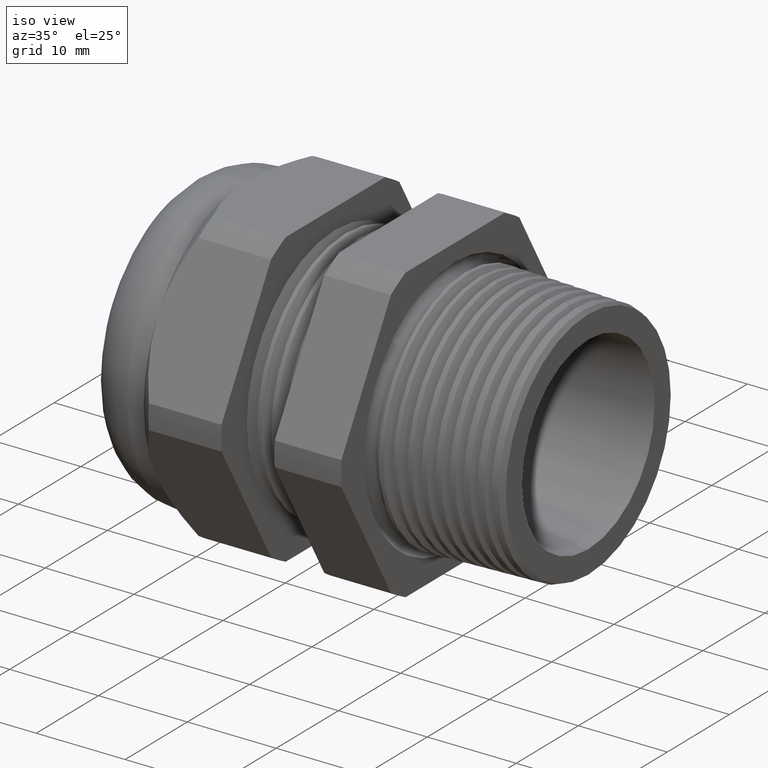
[diagram: clean part render]
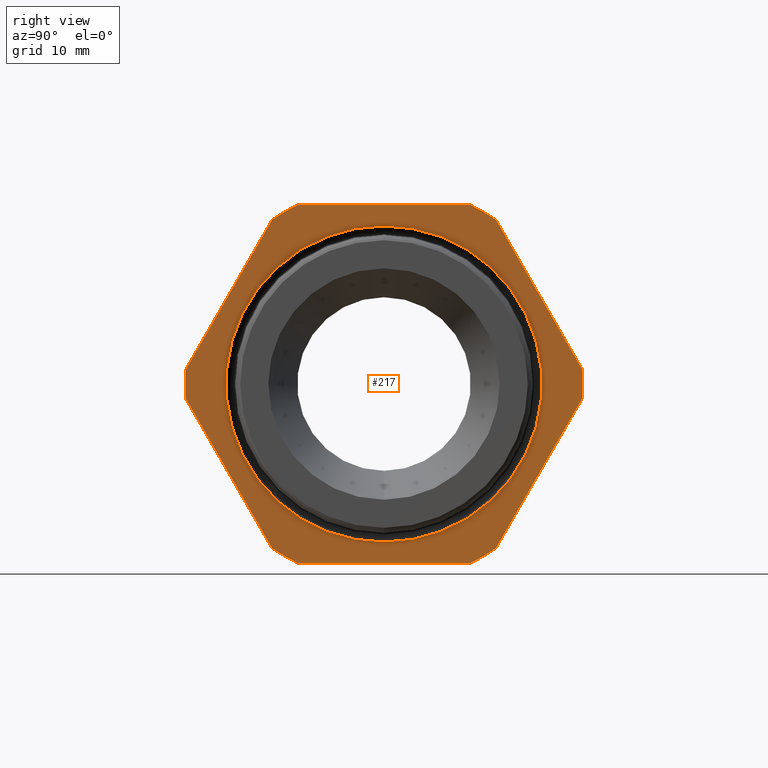
[diagram: tour spotlight — one face highlighted and labeled with its STEP entity id]
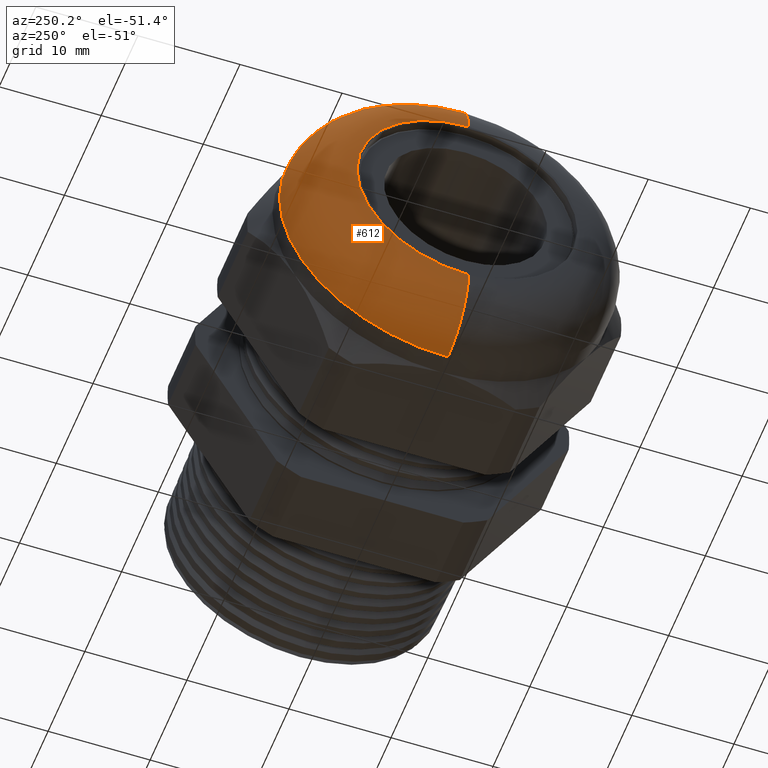
[diagram: tour spotlight — one face highlighted and labeled with its STEP entity id]
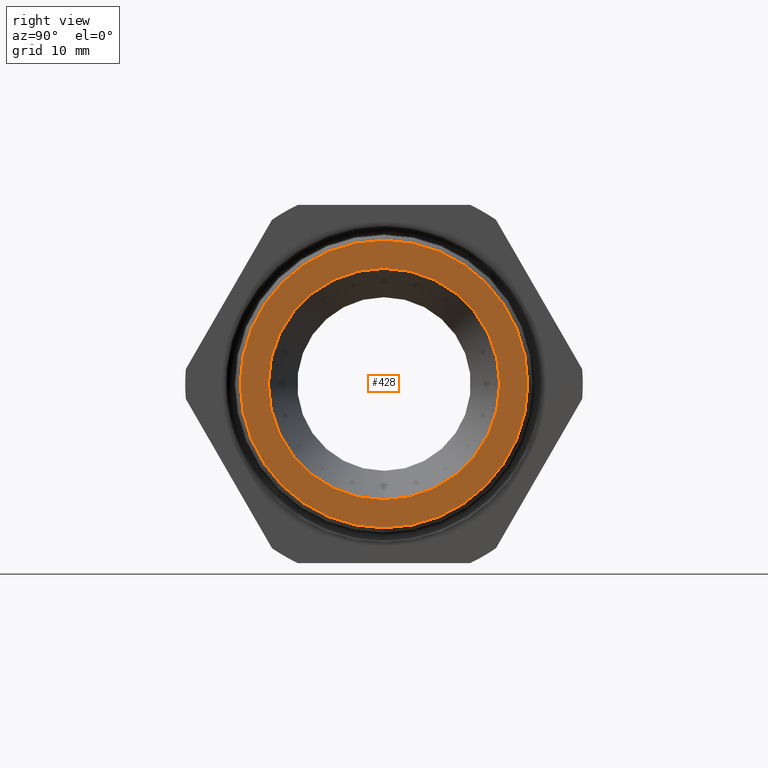
[diagram: tour spotlight — one face highlighted and labeled with its STEP entity id]
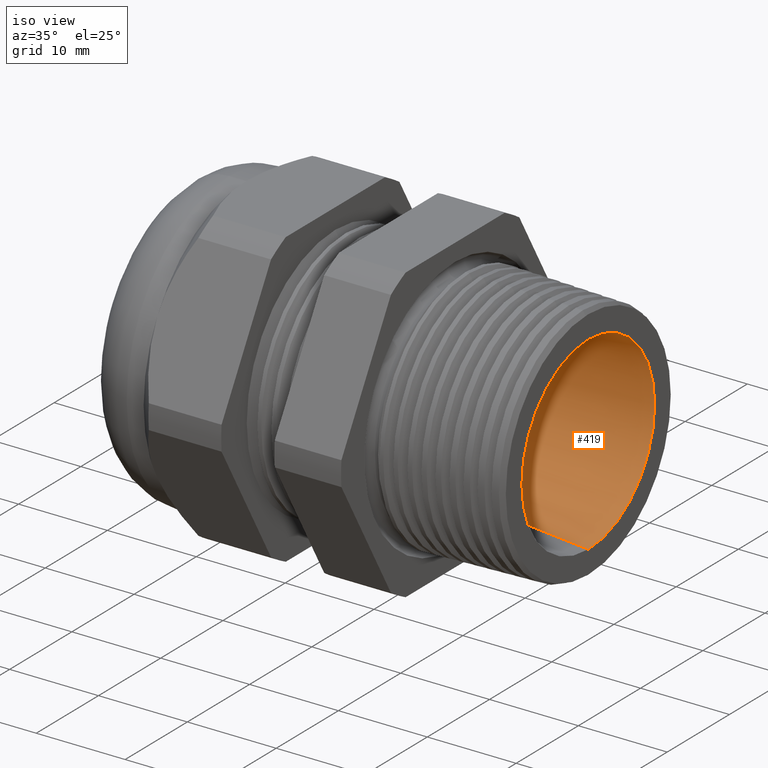
[diagram: tour spotlight — one face highlighted and labeled with its STEP entity id]
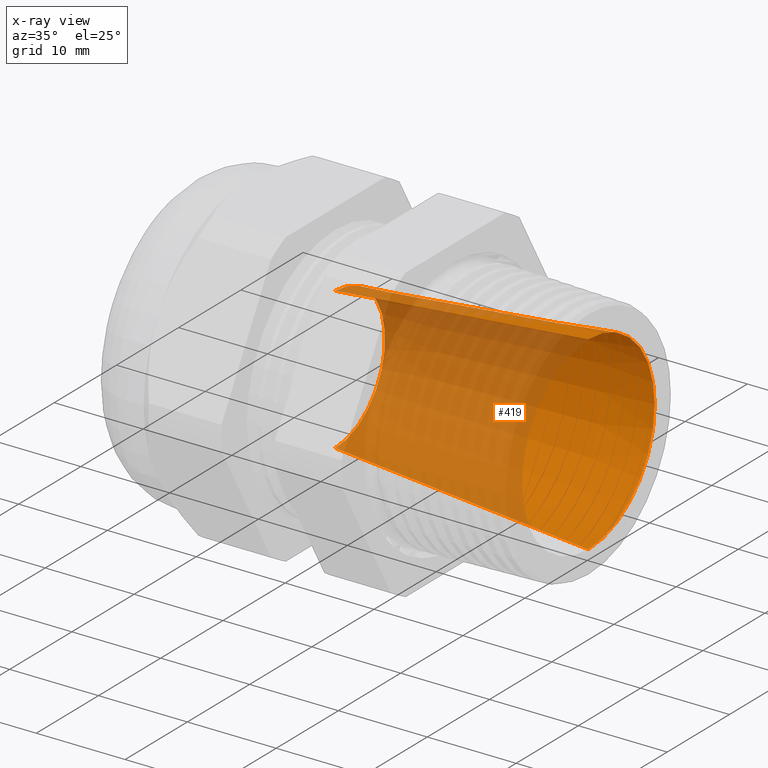
[diagram: x-ray of the same camera — body ghosted, this tour face saturated]
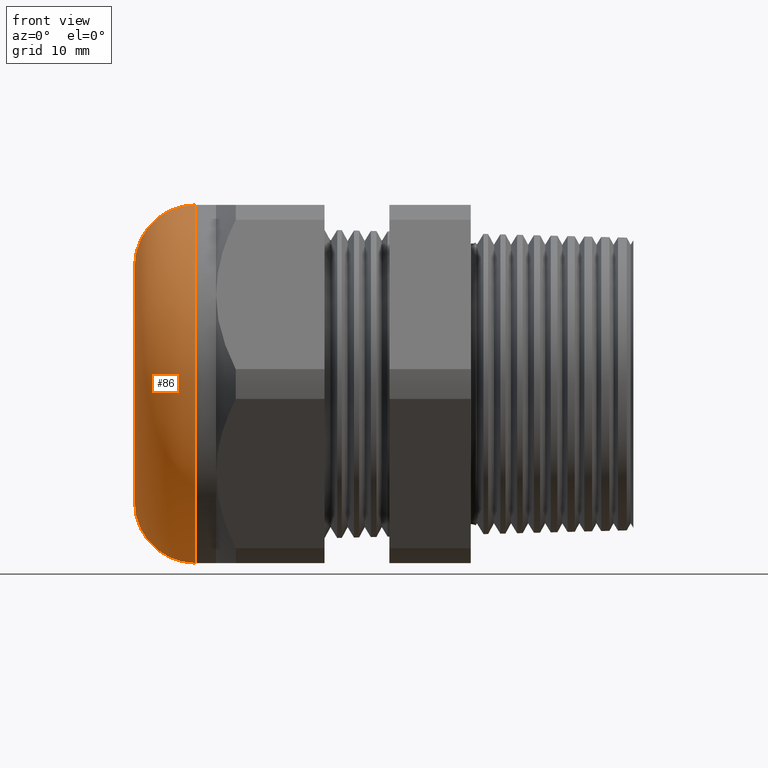
[diagram: tour spotlight — one face highlighted and labeled with its STEP entity id]
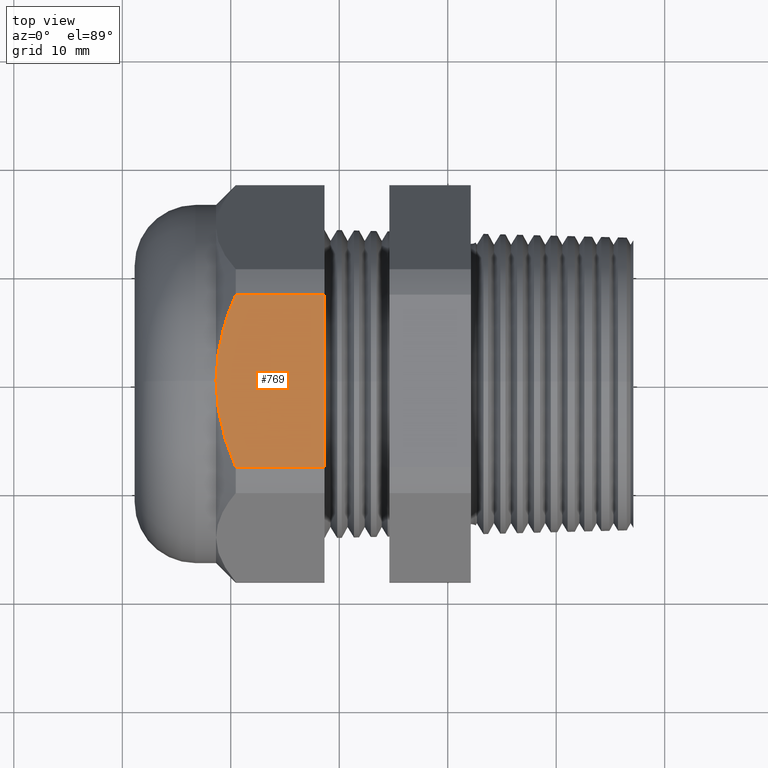
[diagram: tour spotlight — one face highlighted and labeled with its STEP entity id]
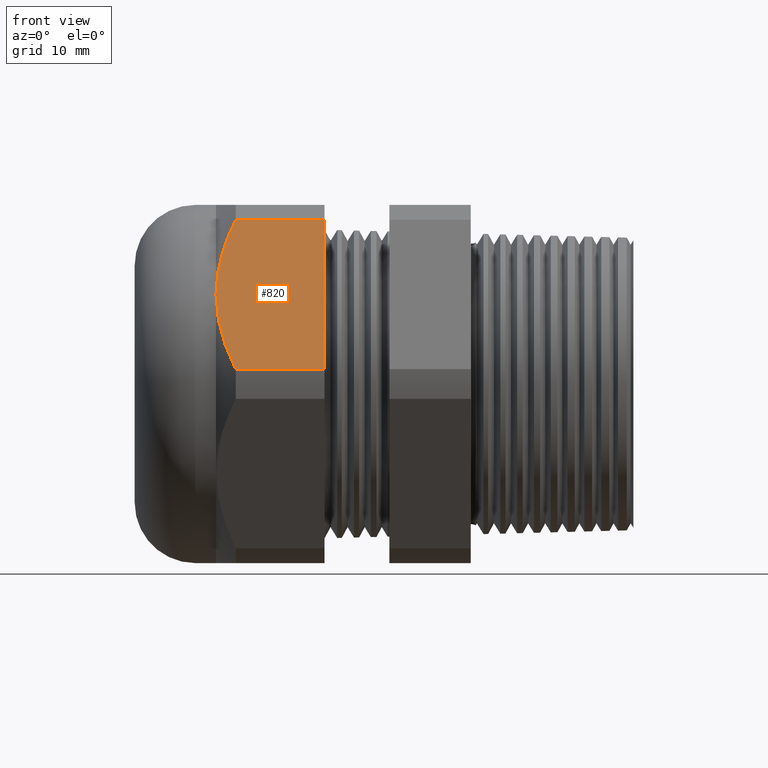
[diagram: tour spotlight — one face highlighted and labeled with its STEP entity id]
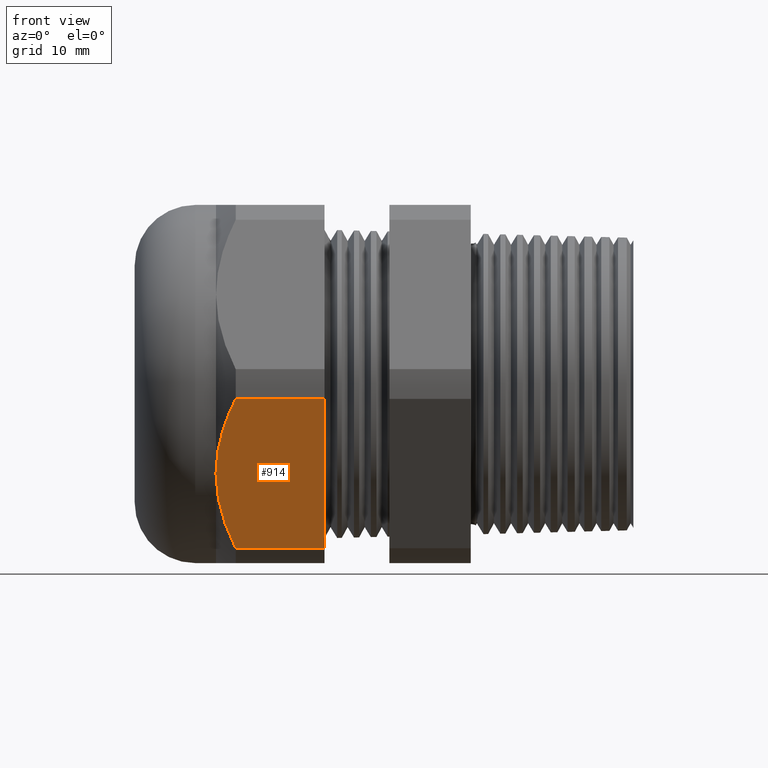
[diagram: tour spotlight — one face highlighted and labeled with its STEP entity id]
A machine part: a face-by-face anatomy tour. The part has 140 B-rep faces; the first image is the clean iso view, then the 8 largest visible faces are spotlighted one at a time (largest first), each with its STEP entity span.

Face 1 — right view, entity #217. In plain terms, the highlighted planar face has unit normal (1, 0, 0).
Definition (entity closure, byte-faithful):
#211 = VERTEX_POINT ( 'NONE', #1310 ) ;
#215 = EDGE_LOOP ( 'NONE', ( #225, #228, #222, #849, #852, #855, #858, #861, #876, #879, #882, #885 ) ) ;
#217 = ADVANCED_FACE ( 'NONE', ( #1365, #1364 ), #1363, .T. ) ;
#219 = VERTEX_POINT ( 'NONE', #1352 ) ;
#222 = ORIENTED_EDGE ( 'NONE', *, *, #847, .T. ) ;
#223 = EDGE_CURVE ( 'NONE', #219, #226, #1347, .T. ) ;
#225 = ORIENTED_EDGE ( 'NONE', *, *, #223, .T. ) ;
#226 = VERTEX_POINT ( 'NONE', #1343 ) ;
#227 = EDGE_CURVE ( 'NONE', #226, #211, #1341, .T. ) ;
#228 = ORIENTED_EDGE ( 'NONE', *, *, #227, .T. ) ;
#538 = VERTEX_POINT ( 'NONE', #1912 ) ;
#541 = EDGE_CURVE ( 'NONE', #538, #569, #1972, .T. ) ;
#569 = VERTEX_POINT ( 'NONE', #1986 ) ;
#803 = ORIENTED_EDGE ( 'NONE', *, *, #541, .T. ) ;
#847 = EDGE_CURVE ( 'NONE', #211, #848, #2535, .T. ) ;
#848 = VERTEX_POINT ( 'NONE', #2531 ) ;
#849 = ORIENTED_EDGE ( 'NONE', *, *, #850, .T. ) ;
#850 = EDGE_CURVE ( 'NONE', #848, #851, #2530, .T. ) ;
#851 = VERTEX_POINT ( 'NONE', #2525 ) ;
#852 = ORIENTED_EDGE ( 'NONE', *, *, #853, .T. ) ;
#853 = EDGE_CURVE ( 'NONE', #851, #854, #2524, .T. ) ;
#854 = VERTEX_POINT ( 'NONE', #2520 ) ;
#855 = ORIENTED_EDGE ( 'NONE', *, *, #856, .T. ) ;
#856 = EDGE_CURVE ( 'NONE', #854, #857, #2519, .T. ) ;
#857 = VERTEX_POINT ( 'NONE', #2514 ) ;
#858 = ORIENTED_EDGE ( 'NONE', *, *, #859, .T. ) ;
#859 = EDGE_CURVE ( 'NONE', #857, #860, #2513, .T. ) ;
#860 = VERTEX_POINT ( 'NONE', #2509 ) ;
#861 = ORIENTED_EDGE ( 'NONE', *, *, #874, .T. ) ;
#862 = ORIENTED_EDGE ( 'NONE', *, *, #863, .T. ) ;
#863 = EDGE_CURVE ( 'NONE', #569, #538, #2507, .T. ) ;
#874 = EDGE_CURVE ( 'NONE', #860, #875, #2550, .T. ) ;
#875 = VERTEX_POINT ( 'NONE', #2541 ) ;
#876 = ORIENTED_EDGE ( 'NONE', *, *, #877, .T. ) ;
#877 = EDGE_CURVE ( 'NONE', #875, #878, #2540, .T. ) ;
#878 = VERTEX_POINT ( 'NONE', #2536 ) ;
#879 = ORIENTED_EDGE ( 'NONE', *, *, #880, .T. ) ;
#880 = EDGE_CURVE ( 'NONE', #878, #881, #2593, .T. ) ;
#881 = VERTEX_POINT ( 'NONE', #2588 ) ;
#882 = ORIENTED_EDGE ( 'NONE', *, *, #883, .T. ) ;
#883 = EDGE_CURVE ( 'NONE', #881, #884, #2587, .T. ) ;
#884 = VERTEX_POINT ( 'NONE', #2583 ) ;
#885 = ORIENTED_EDGE ( 'NONE', *, *, #886, .T. ) ;
#886 = EDGE_CURVE ( 'NONE', #884, #219, #2582, .T. ) ;
#887 = EDGE_LOOP ( 'NONE', ( #803, #862 ) ) ;
#1310 = CARTESIAN_POINT ( 'NONE',  ( -0.3100000000000000000, 0.7194909755756818700, 0.05380507471562141800 ) ) ;
#1337 = DIRECTION ( 'NONE',  ( 0.0000000000000000000, 0.0000000000000000000, -1.000000000000000000 ) ) ;
#1338 = DIRECTION ( 'NONE',  ( 1.000000000000000000, 0.0000000000000000000, 0.0000000000000000000 ) ) ;
#1339 = CARTESIAN_POINT ( 'NONE',  ( -0.3100000000000000000, 0.0000000000000000000, 0.0000000000000000000 ) ) ;
#1340 = AXIS2_PLACEMENT_3D ( 'NONE', #1339, #1338, #1337 ) ;
#1341 = CIRCLE ( 'NONE', #1340, 0.7214999999999999200 ) ;
#1343 = CARTESIAN_POINT ( 'NONE',  ( -0.3100000000000000000, 0.7194909755756817600, -0.05380507471562087600 ) ) ;
#1344 = DIRECTION ( 'NONE',  ( 0.0000000000000000000, 0.4999999999999995600, 0.8660254037844388200 ) ) ;
#1345 = VECTOR ( 'NONE', #1344, 39.37007874015748900 ) ;
#1346 = CARTESIAN_POINT ( 'NONE',  ( -0.3100000000000000000, 0.8879165124598849000, 0.2379165124598851000 ) ) ;
#1347 = LINE ( 'NONE', #1346, #1345 ) ;
#1352 = CARTESIAN_POINT ( 'NONE',  ( -0.3100000000000000000, 0.4063420493440886800, -0.5961949252843790100 ) ) ;
#1359 = DIRECTION ( 'NONE',  ( 0.0000000000000000000, 0.0000000000000000000, -1.000000000000000000 ) ) ;
#1360 = DIRECTION ( 'NONE',  ( 1.000000000000000000, 0.0000000000000000000, 0.0000000000000000000 ) ) ;
#1361 = CARTESIAN_POINT ( 'NONE',  ( -0.3100000000000000000, 1.300000000000000000, 0.0000000000000000000 ) ) ;
#1362 = AXIS2_PLACEMENT_3D ( 'NONE', #1361, #1360, #1359 ) ;
#1363 = PLANE ( 'NONE',  #1362 ) ;
#1364 = FACE_BOUND ( 'NONE', #887, .T. ) ;
#1365 = FACE_OUTER_BOUND ( 'NONE', #215, .T. ) ;
#1912 = CARTESIAN_POINT ( 'NONE',  ( -0.3100000000000000000, 0.0000000000000000000, -0.5735792688232509400 ) ) ;
#1968 = DIRECTION ( 'NONE',  ( 0.0000000000000000000, 0.0000000000000000000, -1.000000000000000000 ) ) ;
#1969 = DIRECTION ( 'NONE',  ( -1.000000000000000000, 0.0000000000000000000, 0.0000000000000000000 ) ) ;
#1970 = CARTESIAN_POINT ( 'NONE',  ( -0.3100000000000000000, 0.0000000000000000000, 0.0000000000000000000 ) ) ;
#1971 = AXIS2_PLACEMENT_3D ( 'NONE', #1970, #1969, #1968 ) ;
#1972 = CIRCLE ( 'NONE', #1971, 0.5735792688232509400 ) ;
#1986 = CARTESIAN_POINT ( 'NONE',  ( -0.3100000000000000000, 7.024320156216735800E-017, 0.5735792688232509400 ) ) ;
#2505 = CARTESIAN_POINT ( 'NONE',  ( -0.3100000000000000000, 0.0000000000000000000, 0.0000000000000000000 ) ) ;
#2506 = AXIS2_PLACEMENT_3D ( 'NONE', #2505, #2564, #2563 ) ;
#2507 = CIRCLE ( 'NONE', #2506, 0.5735792688232509400 ) ;
#2509 = CARTESIAN_POINT ( 'NONE',  ( -0.3100000000000000000, -0.7194909755756820900, 0.05380507471562026600 ) ) ;
#2510 = DIRECTION ( 'NONE',  ( 0.0000000000000000000, -0.4999999999999996100, -0.8660254037844388200 ) ) ;
#2511 = VECTOR ( 'NONE', #2510, 39.37007874015748100 ) ;
#2512 = CARTESIAN_POINT ( 'NONE',  ( -0.3100000000000000000, -0.2379165124598855400, 0.8879165124598845700 ) ) ;
#2513 = LINE ( 'NONE', #2512, #2511 ) ;
#2514 = CARTESIAN_POINT ( 'NONE',  ( -0.3100000000000000000, -0.4063420493440885700, 0.5961949252843791200 ) ) ;
#2515 = DIRECTION ( 'NONE',  ( 0.0000000000000000000, 0.0000000000000000000, -1.000000000000000000 ) ) ;
#2516 = DIRECTION ( 'NONE',  ( 1.000000000000000000, 0.0000000000000000000, 0.0000000000000000000 ) ) ;
#2517 = CARTESIAN_POINT ( 'NONE',  ( -0.3100000000000000000, 0.0000000000000000000, 0.0000000000000000000 ) ) ;
#2518 = AXIS2_PLACEMENT_3D ( 'NONE', #2517, #2516, #2515 ) ;
#2519 = CIRCLE ( 'NONE', #2518, 0.7215000000000000300 ) ;
#2520 = CARTESIAN_POINT ( 'NONE',  ( -0.3100000000000000000, -0.3131489262315937400, 0.6500000000000000200 ) ) ;
#2521 = DIRECTION ( 'NONE',  ( 0.0000000000000000000, -1.000000000000000000, 0.0000000000000000000 ) ) ;
#2522 = VECTOR ( 'NONE', #2521, 39.37007874015748100 ) ;
#2523 = CARTESIAN_POINT ( 'NONE',  ( -0.3100000000000000000, 1.300000000000000000, 0.6499999999999999100 ) ) ;
#2524 = LINE ( 'NONE', #2523, #2522 ) ;
#2525 = CARTESIAN_POINT ( 'NONE',  ( -0.3100000000000000000, 0.3131489262315937900, 0.6499999999999999100 ) ) ;
#2526 = DIRECTION ( 'NONE',  ( 0.0000000000000000000, 0.0000000000000000000, -1.000000000000000000 ) ) ;
#2527 = DIRECTION ( 'NONE',  ( 1.000000000000000000, 0.0000000000000000000, 0.0000000000000000000 ) ) ;
#2528 = CARTESIAN_POINT ( 'NONE',  ( -0.3100000000000000000, 0.0000000000000000000, 0.0000000000000000000 ) ) ;
#2529 = AXIS2_PLACEMENT_3D ( 'NONE', #2528, #2527, #2526 ) ;
#2530 = CIRCLE ( 'NONE', #2529, 0.7215000000000000300 ) ;
#2531 = CARTESIAN_POINT ( 'NONE',  ( -0.3100000000000000000, 0.4063420493440889100, 0.5961949252843789000 ) ) ;
#2532 = DIRECTION ( 'NONE',  ( 0.0000000000000000000, -0.5000000000000000000, 0.8660254037844386000 ) ) ;
#2533 = VECTOR ( 'NONE', #2532, 39.37007874015748100 ) ;
#2534 = CARTESIAN_POINT ( 'NONE',  ( -0.3100000000000000000, 0.8879165124598854500, -0.2379165124598849900 ) ) ;
#2535 = LINE ( 'NONE', #2534, #2533 ) ;
#2536 = CARTESIAN_POINT ( 'NONE',  ( -0.3100000000000000000, -0.4063420493440883500, -0.5961949252843792300 ) ) ;
#2537 = DIRECTION ( 'NONE',  ( 0.0000000000000000000, 0.5000000000000001100, -0.8660254037844384900 ) ) ;
#2538 = VECTOR ( 'NONE', #2537, 39.37007874015748900 ) ;
#2539 = CARTESIAN_POINT ( 'NONE',  ( -0.3100000000000000000, -0.2379165124598852700, -0.8879165124598856800 ) ) ;
#2540 = LINE ( 'NONE', #2539, #2538 ) ;
#2541 = CARTESIAN_POINT ( 'NONE',  ( -0.3100000000000000000, -0.7194909755756819800, -0.05380507471562111900 ) ) ;
#2542 = DIRECTION ( 'NONE',  ( 0.0000000000000000000, 0.0000000000000000000, -1.000000000000000000 ) ) ;
#2543 = DIRECTION ( 'NONE',  ( 1.000000000000000000, 0.0000000000000000000, 0.0000000000000000000 ) ) ;
#2544 = CARTESIAN_POINT ( 'NONE',  ( -0.3100000000000000000, 0.0000000000000000000, 0.0000000000000000000 ) ) ;
#2545 = AXIS2_PLACEMENT_3D ( 'NONE', #2544, #2543, #2542 ) ;
#2550 = CIRCLE ( 'NONE', #2545, 0.7215000000000002500 ) ;
#2563 = DIRECTION ( 'NONE',  ( 0.0000000000000000000, 0.0000000000000000000, -1.000000000000000000 ) ) ;
#2564 = DIRECTION ( 'NONE',  ( -1.000000000000000000, 0.0000000000000000000, 0.0000000000000000000 ) ) ;
#2578 = DIRECTION ( 'NONE',  ( 0.0000000000000000000, 0.0000000000000000000, -1.000000000000000000 ) ) ;
#2579 = DIRECTION ( 'NONE',  ( 1.000000000000000000, 0.0000000000000000000, 0.0000000000000000000 ) ) ;
#2580 = CARTESIAN_POINT ( 'NONE',  ( -0.3100000000000000000, 0.0000000000000000000, 0.0000000000000000000 ) ) ;
#2581 = AXIS2_PLACEMENT_3D ( 'NONE', #2580, #2579, #2578 ) ;
#2582 = CIRCLE ( 'NONE', #2581, 0.7215000000000000300 ) ;
#2583 = CARTESIAN_POINT ( 'NONE',  ( -0.3100000000000000000, 0.3131489262315934100, -0.6500000000000001300 ) ) ;
#2584 = DIRECTION ( 'NONE',  ( 0.0000000000000000000, 1.000000000000000000, 0.0000000000000000000 ) ) ;
#2585 = VECTOR ( 'NONE', #2584, 39.37007874015748100 ) ;
#2586 = CARTESIAN_POINT ( 'NONE',  ( -0.3100000000000000000, 1.300000000000000000, -0.6500000000000001300 ) ) ;
#2587 = LINE ( 'NONE', #2586, #2585 ) ;
#2588 = CARTESIAN_POINT ( 'NONE',  ( -0.3100000000000000000, -0.3131489262315934100, -0.6500000000000001300 ) ) ;
#2589 = DIRECTION ( 'NONE',  ( 0.0000000000000000000, 0.0000000000000000000, -1.000000000000000000 ) ) ;
#2590 = DIRECTION ( 'NONE',  ( 1.000000000000000000, 0.0000000000000000000, 0.0000000000000000000 ) ) ;
#2591 = CARTESIAN_POINT ( 'NONE',  ( -0.3100000000000000000, 0.0000000000000000000, 0.0000000000000000000 ) ) ;
#2592 = AXIS2_PLACEMENT_3D ( 'NONE', #2591, #2590, #2589 ) ;
#2593 = CIRCLE ( 'NONE', #2592, 0.7215000000000000300 ) ;

Face 2 — auxiliary view, entity #612. In plain terms, the highlighted toroidal blend (fillet) surface has major radius 10.922 mm and minor (blend) radius 5.588 mm.
Definition (entity closure, byte-faithful):
#535 = EDGE_CURVE ( 'NONE', #607, #588, #1921, .T. ) ;
#536 = ORIENTED_EDGE ( 'NONE', *, *, #535, .F. ) ;
#537 = EDGE_CURVE ( 'NONE', #586, #588, #1916, .T. ) ;
#540 = ORIENTED_EDGE ( 'NONE', *, *, #537, .T. ) ;
#585 = EDGE_CURVE ( 'NONE', #586, #587, #2024, .T. ) ;
#586 = VERTEX_POINT ( 'NONE', #2019 ) ;
#587 = VERTEX_POINT ( 'NONE', #2018 ) ;
#588 = VERTEX_POINT ( 'NONE', #2017 ) ;
#607 = VERTEX_POINT ( 'NONE', #2043 ) ;
#608 = ORIENTED_EDGE ( 'NONE', *, *, #609, .F. ) ;
#609 = EDGE_CURVE ( 'NONE', #587, #607, #2042, .T. ) ;
#612 = ADVANCED_FACE ( 'NONE', ( #2091 ), #2090, .T. ) ;
#613 = EDGE_LOOP ( 'NONE', ( #614, #540, #536, #608 ) ) ;
#614 = ORIENTED_EDGE ( 'NONE', *, *, #585, .F. ) ;
#1913 = DIRECTION ( 'NONE',  ( 0.0000000000000000000, -1.224646799147353200E-016, 1.000000000000000000 ) ) ;
#1914 = DIRECTION ( 'NONE',  ( 0.0000000000000000000, 1.000000000000000000, 1.224646799147353200E-016 ) ) ;
#1915 = AXIS2_PLACEMENT_3D ( 'NONE', #1922, #1914, #1913 ) ;
#1916 = CIRCLE ( 'NONE', #1915, 0.2200000000000000000 ) ;
#1917 = DIRECTION ( 'NONE',  ( 0.0000000000000000000, 0.0000000000000000000, 1.000000000000000000 ) ) ;
#1918 = DIRECTION ( 'NONE',  ( -1.000000000000000000, 0.0000000000000000000, 0.0000000000000000000 ) ) ;
#1919 = CARTESIAN_POINT ( 'NONE',  ( -1.530000000000000000, 0.0000000000000000000, 0.0000000000000000000 ) ) ;
#1920 = AXIS2_PLACEMENT_3D ( 'NONE', #1919, #1918, #1917 ) ;
#1921 = CIRCLE ( 'NONE', #1920, 0.4300000000000002200 ) ;
#1922 = CARTESIAN_POINT ( 'NONE',  ( -1.310000000000000100, 5.265981236333621300E-017, -0.4300000000000002200 ) ) ;
#2017 = CARTESIAN_POINT ( 'NONE',  ( -1.530000000000000000, 6.613092715395709900E-017, -0.4300000000000002200 ) ) ;
#2018 = CARTESIAN_POINT ( 'NONE',  ( -1.310000000000000100, 7.960204194457797900E-017, 0.6500000000000001300 ) ) ;
#2019 = CARTESIAN_POINT ( 'NONE',  ( -1.310000000000000100, 0.0000000000000000000, -0.6500000000000001300 ) ) ;
#2020 = DIRECTION ( 'NONE',  ( 0.0000000000000000000, 0.0000000000000000000, 1.000000000000000000 ) ) ;
#2021 = DIRECTION ( 'NONE',  ( 1.000000000000000000, 0.0000000000000000000, 0.0000000000000000000 ) ) ;
#2022 = CARTESIAN_POINT ( 'NONE',  ( -1.310000000000000100, 0.0000000000000000000, 0.0000000000000000000 ) ) ;
#2023 = AXIS2_PLACEMENT_3D ( 'NONE', #2022, #2021, #2020 ) ;
#2024 = CIRCLE ( 'NONE', #2023, 0.6500000000000001300 ) ;
#2038 = DIRECTION ( 'NONE',  ( 0.0000000000000000000, 0.0000000000000000000, -1.000000000000000000 ) ) ;
#2039 = DIRECTION ( 'NONE',  ( 0.0000000000000000000, -1.000000000000000000, 0.0000000000000000000 ) ) ;
#2040 = CARTESIAN_POINT ( 'NONE',  ( -1.310000000000000100, 0.0000000000000000000, 0.4300000000000002200 ) ) ;
#2041 = AXIS2_PLACEMENT_3D ( 'NONE', #2040, #2039, #2038 ) ;
#2042 = CIRCLE ( 'NONE', #2041, 0.2200000000000000000 ) ;
#2043 = CARTESIAN_POINT ( 'NONE',  ( -1.530000000000000000, 0.0000000000000000000, 0.4300000000000002200 ) ) ;
#2085 = DIRECTION ( 'NONE',  ( 0.0000000000000000000, 0.0000000000000000000, 1.000000000000000000 ) ) ;
#2086 = DIRECTION ( 'NONE',  ( -1.000000000000000000, 0.0000000000000000000, 0.0000000000000000000 ) ) ;
#2087 = CARTESIAN_POINT ( 'NONE',  ( -1.310000000000000100, 0.0000000000000000000, 0.0000000000000000000 ) ) ;
#2088 = AXIS2_PLACEMENT_3D ( 'NONE', #2087, #2086, #2085 ) ;
#2090 = TOROIDAL_SURFACE ( 'NONE', #2088, 0.4300000000000002200, 0.2200000000000000000 ) ;
#2091 = FACE_OUTER_BOUND ( 'NONE', #613, .T. ) ;

Face 3 — right view, entity #428. In plain terms, the highlighted planar face has unit normal (1, 0, 0).
Definition (entity closure, byte-faithful):
#346 = VERTEX_POINT ( 'NONE', #1533 ) ;
#358 = VERTEX_POINT ( 'NONE', #1574 ) ;
#367 = EDGE_CURVE ( 'NONE', #358, #346, #1613, .T. ) ;
#418 = ORIENTED_EDGE ( 'NONE', *, *, #3694, .F. ) ;
#420 = EDGE_LOOP ( 'NONE', ( #421, #418 ) ) ;
#421 = ORIENTED_EDGE ( 'NONE', *, *, #422, .F. ) ;
#422 = EDGE_CURVE ( 'NONE', #3692, #3686, #1694, .T. ) ;
#423 = ORIENTED_EDGE ( 'NONE', *, *, #367, .F. ) ;
#425 = EDGE_LOOP ( 'NONE', ( #427, #423 ) ) ;
#426 = EDGE_CURVE ( 'NONE', #346, #358, #1748, .T. ) ;
#427 = ORIENTED_EDGE ( 'NONE', *, *, #426, .F. ) ;
#428 = ADVANCED_FACE ( 'NONE', ( #1743, #1742 ), #1741, .T. ) ;
#1533 = CARTESIAN_POINT ( 'NONE',  ( 0.2799999999999999700, 0.0000000000000000000, -0.5217586768525732700 ) ) ;
#1574 = CARTESIAN_POINT ( 'NONE',  ( 0.2799999999999999700, 6.389700935348620700E-017, 0.5217586768525732700 ) ) ;
#1609 = DIRECTION ( 'NONE',  ( 0.0000000000000000000, 0.0000000000000000000, -1.000000000000000000 ) ) ;
#1610 = DIRECTION ( 'NONE',  ( -1.000000000000000000, 0.0000000000000000000, 0.0000000000000000000 ) ) ;
#1611 = CARTESIAN_POINT ( 'NONE',  ( 0.2799999999999999700, 0.0000000000000000000, 0.0000000000000000000 ) ) ;
#1612 = AXIS2_PLACEMENT_3D ( 'NONE', #1611, #1610, #1609 ) ;
#1613 = CIRCLE ( 'NONE', #1612, 0.5217586768525732700 ) ;
#1694 = CIRCLE ( 'NONE', #1752, 0.4200000000000000400 ) ;
#1737 = DIRECTION ( 'NONE',  ( 0.0000000000000000000, 0.0000000000000000000, -1.000000000000000000 ) ) ;
#1738 = DIRECTION ( 'NONE',  ( 1.000000000000000000, 0.0000000000000000000, 0.0000000000000000000 ) ) ;
#1739 = CARTESIAN_POINT ( 'NONE',  ( 0.2799999999999999700, 0.4200000000000000400, 0.0000000000000000000 ) ) ;
#1740 = AXIS2_PLACEMENT_3D ( 'NONE', #1739, #1738, #1737 ) ;
#1741 = PLANE ( 'NONE',  #1740 ) ;
#1742 = FACE_BOUND ( 'NONE', #420, .T. ) ;
#1743 = FACE_OUTER_BOUND ( 'NONE', #425, .T. ) ;
#1744 = DIRECTION ( 'NONE',  ( 0.0000000000000000000, 0.0000000000000000000, -1.000000000000000000 ) ) ;
#1745 = DIRECTION ( 'NONE',  ( -1.000000000000000000, 0.0000000000000000000, 0.0000000000000000000 ) ) ;
#1746 = CARTESIAN_POINT ( 'NONE',  ( 0.2799999999999999700, 0.0000000000000000000, 0.0000000000000000000 ) ) ;
#1747 = AXIS2_PLACEMENT_3D ( 'NONE', #1746, #1745, #1744 ) ;
#1748 = CIRCLE ( 'NONE', #1747, 0.5217586768525732700 ) ;
#1749 = DIRECTION ( 'NONE',  ( 0.0000000000000000000, 0.0000000000000000000, -1.000000000000000000 ) ) ;
#1750 = DIRECTION ( 'NONE',  ( 1.000000000000000000, 0.0000000000000000000, 0.0000000000000000000 ) ) ;
#1751 = CARTESIAN_POINT ( 'NONE',  ( 0.2800000000000000300, 0.0000000000000000000, 0.0000000000000000000 ) ) ;
#1752 = AXIS2_PLACEMENT_3D ( 'NONE', #1751, #1750, #1749 ) ;
#3139 = DIRECTION ( 'NONE',  ( 0.0000000000000000000, 0.0000000000000000000, -1.000000000000000000 ) ) ;
#3140 = DIRECTION ( 'NONE',  ( 1.000000000000000000, 0.0000000000000000000, 0.0000000000000000000 ) ) ;
#3141 = CARTESIAN_POINT ( 'NONE',  ( 0.2800000000000000300, 0.0000000000000000000, 0.0000000000000000000 ) ) ;
#3142 = AXIS2_PLACEMENT_3D ( 'NONE', #3141, #3140, #3139 ) ;
#3143 = CIRCLE ( 'NONE', #3142, 0.4200000000000000400 ) ;
#3144 = CARTESIAN_POINT ( 'NONE',  ( 0.2800000000000000300, 0.0000000000000000000, -0.4200000000000000400 ) ) ;
#3149 = CARTESIAN_POINT ( 'NONE',  ( 0.2800000000000000300, 5.143516556418884400E-017, 0.4200000000000000400 ) ) ;
#3686 = VERTEX_POINT ( 'NONE', #3149 ) ;
#3692 = VERTEX_POINT ( 'NONE', #3144 ) ;
#3694 = EDGE_CURVE ( 'NONE', #3686, #3692, #3143, .T. ) ;

Face 4 — iso view, entity #419. An x-ray twin of the same camera follows (body ghosted, this face saturated) — the face is partly hidden behind the body. In plain terms, the highlighted conical surface has half-angle 5.351 deg.
Definition (entity closure, byte-faithful):
#417 = EDGE_LOOP ( 'NONE', ( #439, #441, #440, #442 ) ) ;
#419 = ADVANCED_FACE ( 'NONE', ( #1696 ), #1695, .F. ) ;
#422 = EDGE_CURVE ( 'NONE', #3692, #3686, #1694, .T. ) ;
#438 = EDGE_CURVE ( 'NONE', #3680, #3822, #1783, .T. ) ;
#439 = ORIENTED_EDGE ( 'NONE', *, *, #3685, .F. ) ;
#440 = ORIENTED_EDGE ( 'NONE', *, *, #3690, .T. ) ;
#441 = ORIENTED_EDGE ( 'NONE', *, *, #438, .F. ) ;
#442 = ORIENTED_EDGE ( 'NONE', *, *, #422, .T. ) ;
#1691 = DIRECTION ( 'NONE',  ( 1.000000000000000000, 0.0000000000000000000, 0.0000000000000000000 ) ) ;
#1692 = CARTESIAN_POINT ( 'NONE',  ( -0.8410236220472443500, 0.0000000000000000000, 0.0000000000000000000 ) ) ;
#1693 = AXIS2_PLACEMENT_3D ( 'NONE', #1692, #1691, #1753 ) ;
#1694 = CIRCLE ( 'NONE', #1752, 0.4200000000000000400 ) ;
#1695 = CONICAL_SURFACE ( 'NONE', #1693, 0.3150000000000000000, 0.09339192190004967600 ) ;
#1696 = FACE_OUTER_BOUND ( 'NONE', #417, .T. ) ;
#1749 = DIRECTION ( 'NONE',  ( 0.0000000000000000000, 0.0000000000000000000, -1.000000000000000000 ) ) ;
#1750 = DIRECTION ( 'NONE',  ( 1.000000000000000000, 0.0000000000000000000, 0.0000000000000000000 ) ) ;
#1751 = CARTESIAN_POINT ( 'NONE',  ( 0.2800000000000000300, 0.0000000000000000000, 0.0000000000000000000 ) ) ;
#1752 = AXIS2_PLACEMENT_3D ( 'NONE', #1751, #1750, #1749 ) ;
#1753 = DIRECTION ( 'NONE',  ( 0.0000000000000000000, 0.0000000000000000000, -1.000000000000000000 ) ) ;
#1779 = DIRECTION ( 'NONE',  ( 0.0000000000000000000, 0.0000000000000000000, -1.000000000000000000 ) ) ;
#1780 = DIRECTION ( 'NONE',  ( 1.000000000000000000, 0.0000000000000000000, 0.0000000000000000000 ) ) ;
#1781 = CARTESIAN_POINT ( 'NONE',  ( -0.8410236220472443500, 0.0000000000000000000, 0.0000000000000000000 ) ) ;
#1782 = AXIS2_PLACEMENT_3D ( 'NONE', #1781, #1780, #1779 ) ;
#1783 = CIRCLE ( 'NONE', #1782, 0.3150000000000000000 ) ;
#3094 = CARTESIAN_POINT ( 'NONE',  ( -0.8410236220472443500, 0.0000000000000000000, -0.3150000000000000000 ) ) ;
#3144 = CARTESIAN_POINT ( 'NONE',  ( 0.2800000000000000300, 0.0000000000000000000, -0.4200000000000000400 ) ) ;
#3145 = DIRECTION ( 'NONE',  ( 0.9956421432977821100, 0.0000000000000000000, -0.09325621957488182400 ) ) ;
#3146 = VECTOR ( 'NONE', #3145, 39.37007874015748900 ) ;
#3147 = CARTESIAN_POINT ( 'NONE',  ( -0.8410236220472443500, 0.0000000000000000000, -0.3150000000000000000 ) ) ;
#3148 = LINE ( 'NONE', #3147, #3146 ) ;
#3149 = CARTESIAN_POINT ( 'NONE',  ( 0.2800000000000000300, 5.143516556418884400E-017, 0.4200000000000000400 ) ) ;
#3150 = DIRECTION ( 'NONE',  ( 0.9956421432977821100, 1.142059308029617600E-017, 0.09325621957488182400 ) ) ;
#3151 = VECTOR ( 'NONE', #3150, 39.37007874015748900 ) ;
#3152 = CARTESIAN_POINT ( 'NONE',  ( -0.8410236220472443500, 3.857637417314162700E-017, 0.3150000000000000000 ) ) ;
#3153 = LINE ( 'NONE', #3152, #3151 ) ;
#3394 = CARTESIAN_POINT ( 'NONE',  ( -0.8410236220472443500, 4.500576986866523500E-017, 0.3150000000000000000 ) ) ;
#3680 = VERTEX_POINT ( 'NONE', #3094 ) ;
#3685 = EDGE_CURVE ( 'NONE', #3822, #3686, #3153, .T. ) ;
#3686 = VERTEX_POINT ( 'NONE', #3149 ) ;
#3690 = EDGE_CURVE ( 'NONE', #3680, #3692, #3148, .T. ) ;
#3692 = VERTEX_POINT ( 'NONE', #3144 ) ;
#3822 = VERTEX_POINT ( 'NONE', #3394 ) ;

Face 5 — front view, entity #86. In plain terms, the highlighted toroidal blend (fillet) surface has major radius 10.922 mm and minor (blend) radius 5.588 mm.
Definition (entity closure, byte-faithful):
#76 = ORIENTED_EDGE ( 'NONE', *, *, #609, .T. ) ;
#78 = EDGE_LOOP ( 'NONE', ( #85, #81, #76, #80 ) ) ;
#80 = ORIENTED_EDGE ( 'NONE', *, *, #256, .F. ) ;
#81 = ORIENTED_EDGE ( 'NONE', *, *, #273, .F. ) ;
#85 = ORIENTED_EDGE ( 'NONE', *, *, #537, .F. ) ;
#86 = ADVANCED_FACE ( 'NONE', ( #1165 ), #1164, .T. ) ;
#256 = EDGE_CURVE ( 'NONE', #588, #607, #1433, .T. ) ;
#273 = EDGE_CURVE ( 'NONE', #587, #586, #1457, .T. ) ;
#537 = EDGE_CURVE ( 'NONE', #586, #588, #1916, .T. ) ;
#586 = VERTEX_POINT ( 'NONE', #2019 ) ;
#587 = VERTEX_POINT ( 'NONE', #2018 ) ;
#588 = VERTEX_POINT ( 'NONE', #2017 ) ;
#607 = VERTEX_POINT ( 'NONE', #2043 ) ;
#609 = EDGE_CURVE ( 'NONE', #587, #607, #2042, .T. ) ;
#1161 = DIRECTION ( 'NONE',  ( 0.0000000000000000000, 0.0000000000000000000, 1.000000000000000000 ) ) ;
#1162 = DIRECTION ( 'NONE',  ( -1.000000000000000000, 0.0000000000000000000, 0.0000000000000000000 ) ) ;
#1163 = AXIS2_PLACEMENT_3D ( 'NONE', #1169, #1162, #1161 ) ;
#1164 = TOROIDAL_SURFACE ( 'NONE', #1163, 0.4300000000000002200, 0.2200000000000000000 ) ;
#1165 = FACE_OUTER_BOUND ( 'NONE', #78, .T. ) ;
#1169 = CARTESIAN_POINT ( 'NONE',  ( -1.310000000000000100, 0.0000000000000000000, 0.0000000000000000000 ) ) ;
#1429 = DIRECTION ( 'NONE',  ( 0.0000000000000000000, 0.0000000000000000000, 1.000000000000000000 ) ) ;
#1430 = DIRECTION ( 'NONE',  ( -1.000000000000000000, 0.0000000000000000000, 0.0000000000000000000 ) ) ;
#1431 = CARTESIAN_POINT ( 'NONE',  ( -1.530000000000000000, 0.0000000000000000000, 0.0000000000000000000 ) ) ;
#1432 = AXIS2_PLACEMENT_3D ( 'NONE', #1431, #1430, #1429 ) ;
#1433 = CIRCLE ( 'NONE', #1432, 0.4300000000000002200 ) ;
#1453 = DIRECTION ( 'NONE',  ( 0.0000000000000000000, 0.0000000000000000000, 1.000000000000000000 ) ) ;
#1454 = DIRECTION ( 'NONE',  ( 1.000000000000000000, 0.0000000000000000000, 0.0000000000000000000 ) ) ;
#1455 = CARTESIAN_POINT ( 'NONE',  ( -1.310000000000000100, 0.0000000000000000000, 0.0000000000000000000 ) ) ;
#1456 = AXIS2_PLACEMENT_3D ( 'NONE', #1455, #1454, #1453 ) ;
#1457 = CIRCLE ( 'NONE', #1456, 0.6500000000000001300 ) ;
#1913 = DIRECTION ( 'NONE',  ( 0.0000000000000000000, -1.224646799147353200E-016, 1.000000000000000000 ) ) ;
#1914 = DIRECTION ( 'NONE',  ( 0.0000000000000000000, 1.000000000000000000, 1.224646799147353200E-016 ) ) ;
#1915 = AXIS2_PLACEMENT_3D ( 'NONE', #1922, #1914, #1913 ) ;
#1916 = CIRCLE ( 'NONE', #1915, 0.2200000000000000000 ) ;
#1922 = CARTESIAN_POINT ( 'NONE',  ( -1.310000000000000100, 5.265981236333621300E-017, -0.4300000000000002200 ) ) ;
#2017 = CARTESIAN_POINT ( 'NONE',  ( -1.530000000000000000, 6.613092715395709900E-017, -0.4300000000000002200 ) ) ;
#2018 = CARTESIAN_POINT ( 'NONE',  ( -1.310000000000000100, 7.960204194457797900E-017, 0.6500000000000001300 ) ) ;
#2019 = CARTESIAN_POINT ( 'NONE',  ( -1.310000000000000100, 0.0000000000000000000, -0.6500000000000001300 ) ) ;
#2038 = DIRECTION ( 'NONE',  ( 0.0000000000000000000, 0.0000000000000000000, -1.000000000000000000 ) ) ;
#2039 = DIRECTION ( 'NONE',  ( 0.0000000000000000000, -1.000000000000000000, 0.0000000000000000000 ) ) ;
#2040 = CARTESIAN_POINT ( 'NONE',  ( -1.310000000000000100, 0.0000000000000000000, 0.4300000000000002200 ) ) ;
#2041 = AXIS2_PLACEMENT_3D ( 'NONE', #2040, #2039, #2038 ) ;
#2042 = CIRCLE ( 'NONE', #2041, 0.2200000000000000000 ) ;
#2043 = CARTESIAN_POINT ( 'NONE',  ( -1.530000000000000000, 0.0000000000000000000, 0.4300000000000002200 ) ) ;

Face 6 — top view, entity #769. In plain terms, the highlighted planar face has unit normal (0, 0, 1).
Definition (entity closure, byte-faithful):
#765 = EDGE_CURVE ( 'NONE', #766, #791, #2301, .T. ) ;
#766 = VERTEX_POINT ( 'NONE', #2297 ) ;
#769 = ADVANCED_FACE ( 'NONE', ( #2348 ), #2347, .T. ) ;
#770 = EDGE_LOOP ( 'NONE', ( #771, #772, #774, #804, #807 ) ) ;
#771 = ORIENTED_EDGE ( 'NONE', *, *, #765, .T. ) ;
#772 = ORIENTED_EDGE ( 'NONE', *, *, #773, .T. ) ;
#773 = EDGE_CURVE ( 'NONE', #791, #3665, #2342, .T. ) ;
#774 = ORIENTED_EDGE ( 'NONE', *, *, #775, .T. ) ;
#775 = EDGE_CURVE ( 'NONE', #3665, #776, #2331, .T. ) ;
#776 = VERTEX_POINT ( 'NONE', #2330 ) ;
#791 = VERTEX_POINT ( 'NONE', #2408 ) ;
#804 = ORIENTED_EDGE ( 'NONE', *, *, #805, .F. ) ;
#805 = EDGE_CURVE ( 'NONE', #806, #776, #2385, .T. ) ;
#806 = VERTEX_POINT ( 'NONE', #2442 ) ;
#807 = ORIENTED_EDGE ( 'NONE', *, *, #808, .F. ) ;
#808 = EDGE_CURVE ( 'NONE', #766, #806, #2441, .T. ) ;
#2297 = CARTESIAN_POINT ( 'NONE',  ( -0.8410236220472443500, 0.3131489262315937900, 0.6499999999999999100 ) ) ;
#2298 = DIRECTION ( 'NONE',  ( -1.000000000000000000, 0.0000000000000000000, 0.0000000000000000000 ) ) ;
#2299 = VECTOR ( 'NONE', #2298, 39.37007874015748100 ) ;
#2300 = CARTESIAN_POINT ( 'NONE',  ( 0.2800000000000000300, 0.3131489262315937900, 0.6499999999999999100 ) ) ;
#2301 = LINE ( 'NONE', #2300, #2299 ) ;
#2325 = CARTESIAN_POINT ( 'NONE',  ( -1.201467637304893800, -0.2119448594679246600, 0.6499999999999999100 ) ) ;
#2326 = CARTESIAN_POINT ( 'NONE',  ( -1.209091514772332200, -0.1860728161737496000, 0.6499999999999998000 ) ) ;
#2327 = CARTESIAN_POINT ( 'NONE',  ( -1.227815665476035500, -0.1077136765109594800, 0.6499999999999995800 ) ) ;
#2328 = CARTESIAN_POINT ( 'NONE',  ( -1.234724409448818100, -0.05447567936366846200, 0.6499999999999995800 ) ) ;
#2329 = CARTESIAN_POINT ( 'NONE',  ( -1.234724409448819000, 0.0000000000000000000, 0.6499999999999999100 ) ) ;
#2330 = CARTESIAN_POINT ( 'NONE',  ( -1.163224409448819100, -0.3131489262315937400, 0.6500000000000000200 ) ) ;
#2331 = B_SPLINE_CURVE_WITH_KNOTS ( 'NONE', 3,
 ( #2329, #2328, #2327, #2326, #2325, #2381, #2380, #2379 ),
 .UNSPECIFIED., .F., .F.,
 ( 4, 2, 2, 4 ),
 ( 0.02058130614178225300, 0.02465197266607502300, 0.02668730592822140700, 0.02872263919036779600 ),
 .UNSPECIFIED. ) ;
#2332 = CARTESIAN_POINT ( 'NONE',  ( -1.234724409448819000, 0.0000000000000000000, 0.6499999999999999100 ) ) ;
#2333 = CARTESIAN_POINT ( 'NONE',  ( -1.234724409448819000, 0.02720867923416886100, 0.6499999999999999100 ) ) ;
#2334 = CARTESIAN_POINT ( 'NONE',  ( -1.233001708289443800, 0.05424748414116260100, 0.6500000000000001300 ) ) ;
#2335 = CARTESIAN_POINT ( 'NONE',  ( -1.226413132082745200, 0.1075827506458431200, 0.6500000000000000200 ) ) ;
#2336 = CARTESIAN_POINT ( 'NONE',  ( -1.221549607637757400, 0.1339536167969821700, 0.6500000000000001300 ) ) ;
#2337 = CARTESIAN_POINT ( 'NONE',  ( -1.209063373979637000, 0.1861735441654883700, 0.6500000000000000200 ) ) ;
#2338 = CARTESIAN_POINT ( 'NONE',  ( -1.201442304199998000, 0.2120229154253347200, 0.6499999999999998000 ) ) ;
#2339 = CARTESIAN_POINT ( 'NONE',  ( -1.183842894594863100, 0.2632758613625143000, 0.6499999999999999100 ) ) ;
#2340 = CARTESIAN_POINT ( 'NONE',  ( -1.173924670275582300, 0.2884953587440264300, 0.6499999999999999100 ) ) ;
#2341 = CARTESIAN_POINT ( 'NONE',  ( -1.163224409448819100, 0.3131489262315937900, 0.6499999999999999100 ) ) ;
#2342 = B_SPLINE_CURVE_WITH_KNOTS ( 'NONE', 3,
 ( #2341, #2340, #2339, #2338, #2337, #2336, #2335, #2334, #2333, #2332 ),
 .UNSPECIFIED., .F., .F.,
 ( 4, 2, 2, 2, 4 ),
 ( 0.01244868908973179600, 0.01448184335274441000, 0.01651499761575702200, 0.01854815187876963900, 0.02058130614178225300 ),
 .UNSPECIFIED. ) ;
#2343 = DIRECTION ( 'NONE',  ( 1.000000000000000000, 0.0000000000000000000, 0.0000000000000000000 ) ) ;
#2344 = DIRECTION ( 'NONE',  ( 0.0000000000000000000, 0.0000000000000000000, 1.000000000000000000 ) ) ;
#2345 = CARTESIAN_POINT ( 'NONE',  ( 0.2800000000000000300, -0.3131489262315937900, 0.6499999999999999100 ) ) ;
#2346 = AXIS2_PLACEMENT_3D ( 'NONE', #2345, #2344, #2343 ) ;
#2347 = PLANE ( 'NONE',  #2346 ) ;
#2348 = FACE_OUTER_BOUND ( 'NONE', #770, .T. ) ;
#2379 = CARTESIAN_POINT ( 'NONE',  ( -1.163224409448819100, -0.3131489262315937400, 0.6500000000000000200 ) ) ;
#2380 = CARTESIAN_POINT ( 'NONE',  ( -1.173931998907687300, -0.2884784734615907200, 0.6499999999999998000 ) ) ;
#2381 = CARTESIAN_POINT ( 'NONE',  ( -1.183848400135287100, -0.2632641016272523300, 0.6499999999999999100 ) ) ;
#2385 = LINE ( 'NONE', #2445, #2444 ) ;
#2408 = CARTESIAN_POINT ( 'NONE',  ( -1.163224409448819100, 0.3131489262315937900, 0.6499999999999999100 ) ) ;
#2438 = DIRECTION ( 'NONE',  ( 0.0000000000000000000, -1.000000000000000000, 0.0000000000000000000 ) ) ;
#2439 = VECTOR ( 'NONE', #2438, 39.37007874015748100 ) ;
#2440 = CARTESIAN_POINT ( 'NONE',  ( -0.8410236220472443500, 0.5600000000000000500, 0.6499999999999999100 ) ) ;
#2441 = LINE ( 'NONE', #2440, #2439 ) ;
#2442 = CARTESIAN_POINT ( 'NONE',  ( -0.8410236220472443500, -0.3131489262315937400, 0.6500000000000000200 ) ) ;
#2443 = DIRECTION ( 'NONE',  ( -1.000000000000000000, 0.0000000000000000000, 0.0000000000000000000 ) ) ;
#2444 = VECTOR ( 'NONE', #2443, 39.37007874015748100 ) ;
#2445 = CARTESIAN_POINT ( 'NONE',  ( 0.2800000000000000300, -0.3131489262315937400, 0.6500000000000000200 ) ) ;
#3064 = CARTESIAN_POINT ( 'NONE',  ( -1.234724409448819000, 0.0000000000000000000, 0.6499999999999999100 ) ) ;
#3665 = VERTEX_POINT ( 'NONE', #3064 ) ;

Face 7 — front view, entity #820. In plain terms, the highlighted planar face has unit normal (0, -0.866, 0.5).
Definition (entity closure, byte-faithful):
#814 = VERTEX_POINT ( 'NONE', #2426 ) ;
#816 = EDGE_CURVE ( 'NONE', #817, #814, #2425, .T. ) ;
#817 = VERTEX_POINT ( 'NONE', #2421 ) ;
#820 = ADVANCED_FACE ( 'NONE', ( #2420 ), #2414, .T. ) ;
#821 = EDGE_LOOP ( 'NONE', ( #822, #823, #826, #829, #924 ) ) ;
#822 = ORIENTED_EDGE ( 'NONE', *, *, #816, .T. ) ;
#823 = ORIENTED_EDGE ( 'NONE', *, *, #824, .T. ) ;
#824 = EDGE_CURVE ( 'NONE', #814, #825, #2469, .T. ) ;
#825 = VERTEX_POINT ( 'NONE', #2468 ) ;
#826 = ORIENTED_EDGE ( 'NONE', *, *, #827, .T. ) ;
#827 = EDGE_CURVE ( 'NONE', #825, #828, #2456, .T. ) ;
#828 = VERTEX_POINT ( 'NONE', #2457 ) ;
#829 = ORIENTED_EDGE ( 'NONE', *, *, #830, .F. ) ;
#830 = EDGE_CURVE ( 'NONE', #831, #828, #2449, .T. ) ;
#831 = VERTEX_POINT ( 'NONE', #2503 ) ;
#917 = EDGE_CURVE ( 'NONE', #817, #831, #2638, .T. ) ;
#924 = ORIENTED_EDGE ( 'NONE', *, *, #917, .F. ) ;
#2414 = PLANE ( 'NONE',  #2473 ) ;
#2420 = FACE_OUTER_BOUND ( 'NONE', #821, .T. ) ;
#2421 = CARTESIAN_POINT ( 'NONE',  ( -0.8410236220472443500, -0.4063420493440885700, 0.5961949252843791200 ) ) ;
#2422 = DIRECTION ( 'NONE',  ( -1.000000000000000000, 0.0000000000000000000, 0.0000000000000000000 ) ) ;
#2423 = VECTOR ( 'NONE', #2422, 39.37007874015748100 ) ;
#2424 = CARTESIAN_POINT ( 'NONE',  ( 0.2800000000000000300, -0.4063420493440885700, 0.5961949252843791200 ) ) ;
#2425 = LINE ( 'NONE', #2424, #2423 ) ;
#2426 = CARTESIAN_POINT ( 'NONE',  ( -1.163224409448819100, -0.4063420493440885700, 0.5961949252843791200 ) ) ;
#2446 = DIRECTION ( 'NONE',  ( -1.000000000000000000, 0.0000000000000000000, 0.0000000000000000000 ) ) ;
#2447 = VECTOR ( 'NONE', #2446, 39.37007874015748100 ) ;
#2448 = CARTESIAN_POINT ( 'NONE',  ( 0.2800000000000000300, -0.7194909755756820900, 0.05380507471562026600 ) ) ;
#2449 = LINE ( 'NONE', #2448, #2447 ) ;
#2450 = CARTESIAN_POINT ( 'NONE',  ( -1.163224409448818900, -0.7194909755756820900, 0.05380507471562026600 ) ) ;
#2451 = CARTESIAN_POINT ( 'NONE',  ( -1.184872741445236900, -0.6945519286446000300, 0.09700077109259905300 ) ) ;
#2452 = CARTESIAN_POINT ( 'NONE',  ( -1.202996499520028200, -0.6687756690813084800, 0.1416465622853033700 ) ) ;
#2453 = CARTESIAN_POINT ( 'NONE',  ( -1.227884653074518000, -0.6165592345672921100, 0.2320880798536728900 ) ) ;
#2454 = CARTESIAN_POINT ( 'NONE',  ( -1.234724409448818300, -0.5900081318517967900, 0.2780759387538905300 ) ) ;
#2455 = CARTESIAN_POINT ( 'NONE',  ( -1.234724409448819000, -0.5629165124598852800, 0.3249999999999997900 ) ) ;
#2456 = B_SPLINE_CURVE_WITH_KNOTS ( 'NONE', 3,
 ( #2455, #2454, #2453, #2452, #2451, #2450 ),
 .UNSPECIFIED., .F., .F.,
 ( 4, 2, 4 ),
 ( 0.008163776578903781900, 0.01224274182034620200, 0.01632170706178862100 ),
 .UNSPECIFIED. ) ;
#2457 = CARTESIAN_POINT ( 'NONE',  ( -1.163224409448818900, -0.7194909755756820900, 0.05380507471562026600 ) ) ;
#2458 = CARTESIAN_POINT ( 'NONE',  ( -1.234724409448819000, -0.5629165124598852800, 0.3249999999999997900 ) ) ;
#2459 = CARTESIAN_POINT ( 'NONE',  ( -1.234724409448819200, -0.5561389602113053800, 0.3367390648454930400 ) ) ;
#2460 = CARTESIAN_POINT ( 'NONE',  ( -1.234295499348922600, -0.5492994181763347600, 0.3485854991505648600 ) ) ;
#2461 = CARTESIAN_POINT ( 'NONE',  ( -1.232591953151822800, -0.5357104722797961800, 0.3721222438646742400 ) ) ;
#2462 = CARTESIAN_POINT ( 'NONE',  ( -1.231322888010232300, -0.5289679975772969600, 0.3838005526181506600 ) ) ;
#2463 = CARTESIAN_POINT ( 'NONE',  ( -1.226339375409179800, -0.5088871528993772500, 0.4185815958592073400 ) ) ;
#2464 = CARTESIAN_POINT ( 'NONE',  ( -1.221448244131501100, -0.4956954080403316300, 0.4414303681955596400 ) ) ;
#2465 = CARTESIAN_POINT ( 'NONE',  ( -1.202717682382704200, -0.4566257321431002000, 0.5091010318848138100 ) ) ;
#2466 = CARTESIAN_POINT ( 'NONE',  ( -1.184845972670086600, -0.4312502584378785100, 0.5530526416083857400 ) ) ;
#2467 = CARTESIAN_POINT ( 'NONE',  ( -1.163224409448819100, -0.4063420493440885700, 0.5961949252843791200 ) ) ;
#2468 = CARTESIAN_POINT ( 'NONE',  ( -1.234724409448819000, -0.5629165124598852800, 0.3249999999999997900 ) ) ;
#2469 = B_SPLINE_CURVE_WITH_KNOTS ( 'NONE', 3,
 ( #2467, #2466, #2465, #2464, #2463, #2462, #2461, #2460, #2459, #2458 ),
 .UNSPECIFIED., .F., .F.,
 ( 4, 2, 2, 2, 4 ),
 ( 2.483249165352349700E-007, 0.004082012451910162400, 0.006122894515406974300, 0.007143335547155378100, 0.008163776578903781900 ),
 .UNSPECIFIED. ) ;
#2470 = DIRECTION ( 'NONE',  ( 0.0000000000000000000, -0.4999999999999996100, -0.8660254037844388200 ) ) ;
#2471 = DIRECTION ( 'NONE',  ( 0.0000000000000000000, -0.8660254037844388200, 0.4999999999999996100 ) ) ;
#2472 = CARTESIAN_POINT ( 'NONE',  ( 0.2800000000000000300, -0.7194909755756819800, 0.05380507471562046700 ) ) ;
#2473 = AXIS2_PLACEMENT_3D ( 'NONE', #2472, #2471, #2470 ) ;
#2503 = CARTESIAN_POINT ( 'NONE',  ( -0.8410236220472443500, -0.7194909755756820900, 0.05380507471562026600 ) ) ;
#2635 = DIRECTION ( 'NONE',  ( 0.0000000000000000000, -0.4999999999999996100, -0.8660254037844388200 ) ) ;
#2636 = VECTOR ( 'NONE', #2635, 39.37007874015748100 ) ;
#2637 = CARTESIAN_POINT ( 'NONE',  ( -0.8410236220472443500, -0.4229165124598854900, 0.5674871130596425000 ) ) ;
#2638 = LINE ( 'NONE', #2637, #2636 ) ;

Face 8 — front view, entity #914. In plain terms, the highlighted planar face has unit normal (0, -0.866, -0.5).
Definition (entity closure, byte-faithful):
#892 = EDGE_CURVE ( 'NONE', #913, #916, #2572, .T. ) ;
#911 = ORIENTED_EDGE ( 'NONE', *, *, #937, .F. ) ;
#912 = ORIENTED_EDGE ( 'NONE', *, *, #941, .T. ) ;
#913 = VERTEX_POINT ( 'NONE', #2649 ) ;
#914 = ADVANCED_FACE ( 'NONE', ( #2645 ), #2644, .T. ) ;
#916 = VERTEX_POINT ( 'NONE', #2639 ) ;
#937 = EDGE_CURVE ( 'NONE', #953, #950, #2660, .T. ) ;
#939 = ORIENTED_EDGE ( 'NONE', *, *, #892, .T. ) ;
#941 = EDGE_CURVE ( 'NONE', #957, #913, #2711, .T. ) ;
#942 = ORIENTED_EDGE ( 'NONE', *, *, #952, .T. ) ;
#949 = EDGE_CURVE ( 'NONE', #950, #916, #2686, .T. ) ;
#950 = VERTEX_POINT ( 'NONE', #2743 ) ;
#951 = ORIENTED_EDGE ( 'NONE', *, *, #949, .F. ) ;
#952 = EDGE_CURVE ( 'NONE', #953, #957, #2742, .T. ) ;
#953 = VERTEX_POINT ( 'NONE', #2738 ) ;
#957 = VERTEX_POINT ( 'NONE', #2736 ) ;
#958 = EDGE_LOOP ( 'NONE', ( #942, #912, #939, #951, #911 ) ) ;
#2565 = CARTESIAN_POINT ( 'NONE',  ( -1.163224409448819100, -0.4063420493440883500, -0.5961949252843792300 ) ) ;
#2566 = CARTESIAN_POINT ( 'NONE',  ( -1.184872741445236700, -0.4312810962751705300, -0.5529992289074006100 ) ) ;
#2567 = CARTESIAN_POINT ( 'NONE',  ( -1.202996499520028400, -0.4570573558384620200, -0.5083534377146963200 ) ) ;
#2568 = CARTESIAN_POINT ( 'NONE',  ( -1.227884653074518000, -0.5092737903524785500, -0.4179119201463270500 ) ) ;
#2569 = CARTESIAN_POINT ( 'NONE',  ( -1.234724409448818300, -0.5358248930679735400, -0.3719240612461092200 ) ) ;
#2570 = CARTESIAN_POINT ( 'NONE',  ( -1.234724409448819000, -0.5629165124598851700, -0.3250000000000001800 ) ) ;
#2572 = B_SPLINE_CURVE_WITH_KNOTS ( 'NONE', 3,
 ( #2570, #2569, #2568, #2567, #2566, #2565 ),
 .UNSPECIFIED., .F., .F.,
 ( 4, 2, 4 ),
 ( 0.008163776578903773200, 0.01224274182034618800, 0.01632170706178860300 ),
 .UNSPECIFIED. ) ;
#2639 = CARTESIAN_POINT ( 'NONE',  ( -1.163224409448819100, -0.4063420493440883500, -0.5961949252843792300 ) ) ;
#2640 = DIRECTION ( 'NONE',  ( 0.0000000000000000000, 0.5000000000000001100, -0.8660254037844384900 ) ) ;
#2641 = DIRECTION ( 'NONE',  ( 0.0000000000000000000, -0.8660254037844386000, -0.5000000000000002200 ) ) ;
#2642 = CARTESIAN_POINT ( 'NONE',  ( 0.2800000000000000300, -0.4063420493440884600, -0.5961949252843792300 ) ) ;
#2643 = AXIS2_PLACEMENT_3D ( 'NONE', #2642, #2641, #2640 ) ;
#2644 = PLANE ( 'NONE',  #2643 ) ;
#2645 = FACE_OUTER_BOUND ( 'NONE', #958, .T. ) ;
#2649 = CARTESIAN_POINT ( 'NONE',  ( -1.234724409448819000, -0.5629165124598851700, -0.3250000000000001800 ) ) ;
#2655 = CARTESIAN_POINT ( 'NONE',  ( -0.8410236220472443500, -0.4229165124598852100, -0.5674871130596431700 ) ) ;
#2660 = LINE ( 'NONE', #2655, #2714 ) ;
#2686 = LINE ( 'NONE', #2746, #2745 ) ;
#2699 = CARTESIAN_POINT ( 'NONE',  ( -1.234724409448819000, -0.5629165124598851700, -0.3250000000000001800 ) ) ;
#2700 = CARTESIAN_POINT ( 'NONE',  ( -1.234724409448818300, -0.5696940647084650600, -0.3132609351545068700 ) ) ;
#2701 = CARTESIAN_POINT ( 'NONE',  ( -1.234295499348921900, -0.5765336067434357900, -0.3014145008494348300 ) ) ;
#2702 = CARTESIAN_POINT ( 'NONE',  ( -1.232591953151822400, -0.5901225526399741500, -0.2778777561353255600 ) ) ;
#2703 = CARTESIAN_POINT ( 'NONE',  ( -1.231322888010232700, -0.5968650273424733800, -0.2661994473818491400 ) ) ;
#2704 = CARTESIAN_POINT ( 'NONE',  ( -1.226339375409179600, -0.6169458720203934200, -0.2314184041407928400 ) ) ;
#2705 = CARTESIAN_POINT ( 'NONE',  ( -1.221448244131500900, -0.6301376168794390300, -0.2085696318044402700 ) ) ;
#2706 = CARTESIAN_POINT ( 'NONE',  ( -1.202717682382703900, -0.6692072927766704600, -0.1408989681151863200 ) ) ;
#2707 = CARTESIAN_POINT ( 'NONE',  ( -1.184845972670086800, -0.6945827664818919900, -0.09694735839161446000 ) ) ;
#2708 = CARTESIAN_POINT ( 'NONE',  ( -1.163224409448818900, -0.7194909755756819800, -0.05380507471562109800 ) ) ;
#2711 = B_SPLINE_CURVE_WITH_KNOTS ( 'NONE', 3,
 ( #2708, #2707, #2706, #2705, #2704, #2703, #2702, #2701, #2700, #2699 ),
 .UNSPECIFIED., .F., .F.,
 ( 4, 2, 2, 2, 4 ),
 ( 2.483249165335950000E-007, 0.004082012451910159800, 0.006122894515406971700, 0.007143335547155372000, 0.008163776578903773200 ),
 .UNSPECIFIED. ) ;
#2713 = DIRECTION ( 'NONE',  ( 0.0000000000000000000, 0.5000000000000001100, -0.8660254037844384900 ) ) ;
#2714 = VECTOR ( 'NONE', #2713, 39.37007874015748900 ) ;
#2736 = CARTESIAN_POINT ( 'NONE',  ( -1.163224409448818900, -0.7194909755756819800, -0.05380507471562109800 ) ) ;
#2738 = CARTESIAN_POINT ( 'NONE',  ( -0.8410236220472443500, -0.7194909755756819800, -0.05380507471562111900 ) ) ;
#2739 = DIRECTION ( 'NONE',  ( -1.000000000000000000, 0.0000000000000000000, 0.0000000000000000000 ) ) ;
#2740 = VECTOR ( 'NONE', #2739, 39.37007874015748100 ) ;
#2741 = CARTESIAN_POINT ( 'NONE',  ( 0.2800000000000000300, -0.7194909755756819800, -0.05380507471562111900 ) ) ;
#2742 = LINE ( 'NONE', #2741, #2740 ) ;
#2743 = CARTESIAN_POINT ( 'NONE',  ( -0.8410236220472443500, -0.4063420493440883500, -0.5961949252843792300 ) ) ;
#2744 = DIRECTION ( 'NONE',  ( -1.000000000000000000, 0.0000000000000000000, 0.0000000000000000000 ) ) ;
#2745 = VECTOR ( 'NONE', #2744, 39.37007874015748100 ) ;
#2746 = CARTESIAN_POINT ( 'NONE',  ( 0.2800000000000000300, -0.4063420493440883500, -0.5961949252843792300 ) ) ;